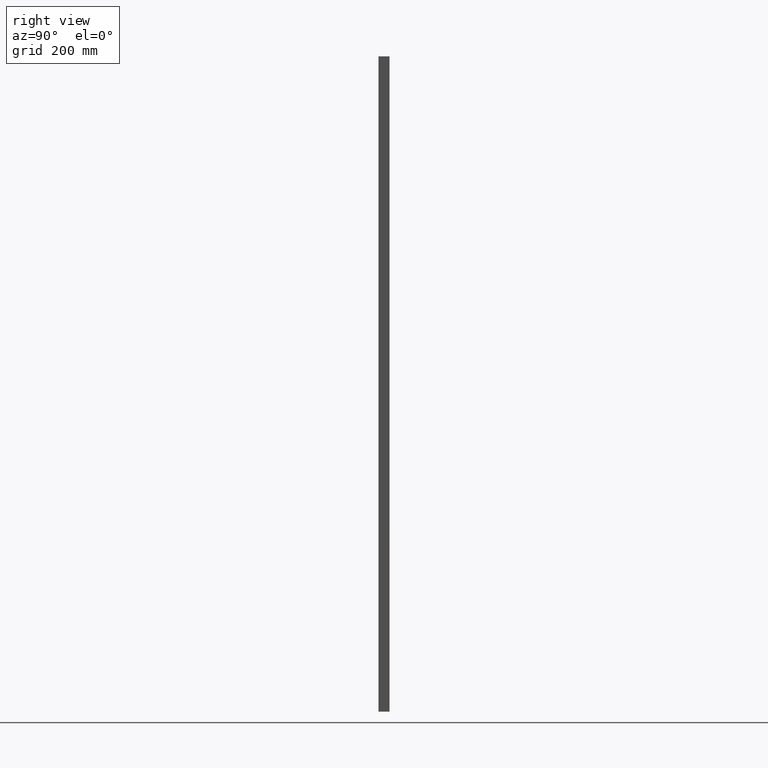
[diagram: clean part render]
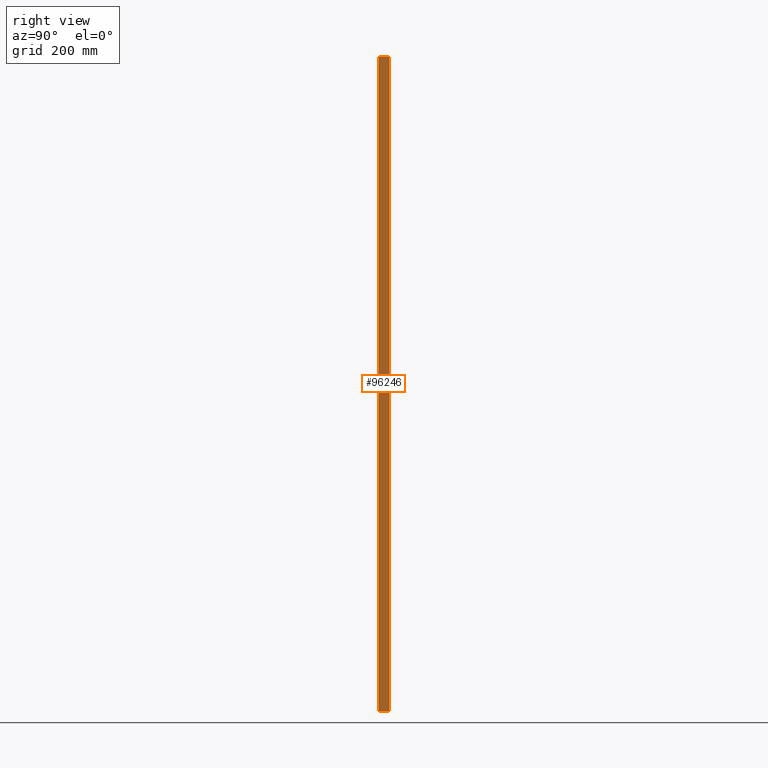
[diagram: same view with one face highlighted and labeled with its STEP entity id]
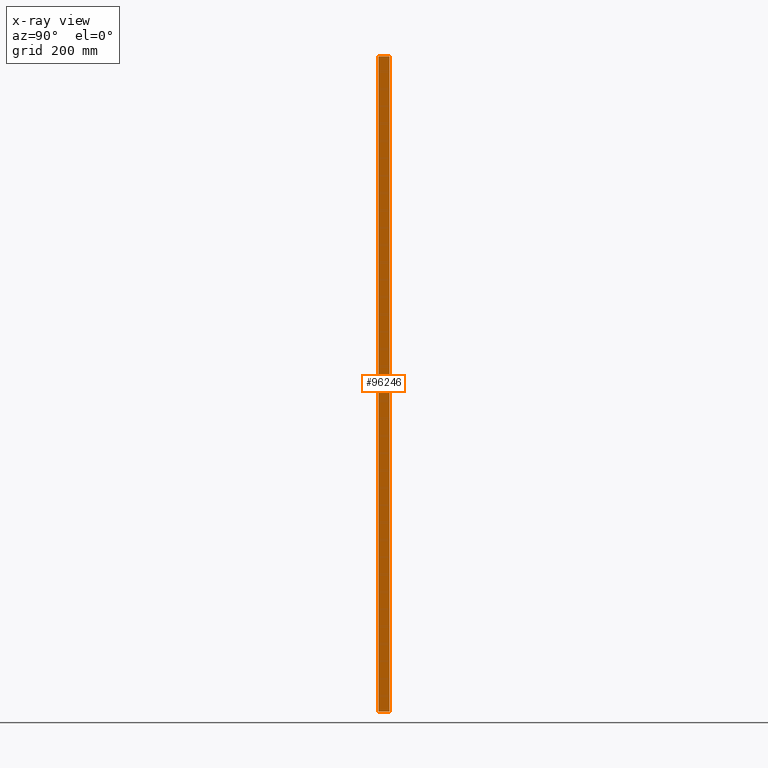
[diagram: x-ray of the same camera — body ghosted, the highlighted face saturated]
A machine part, right view. The second image highlights one B-rep face of the part: STEP entity #96246.
The next image is the same camera in x-ray: the body ghosted, the highlighted face saturated — about 0% of this face is hidden behind the body in this view.
In plain terms, the highlighted planar face has unit normal (1, -0, -0).
Its self-contained STEP definition (entity closure, byte-faithful):
#1186 = CARTESIAN_POINT ( 'NONE',  ( 590.0000000000001100, 9.999999999999468900, 0.0000000000000000000 ) ) ;
#2545 = ORIENTED_EDGE ( 'NONE', *, *, #9432, .F. ) ;
#7644 = DIRECTION ( 'NONE',  ( 9.329605248950895400E-017, 0.0000000000000000000, 1.000000000000000000 ) ) ;
#7698 = VECTOR ( 'NONE', #28053, 1000.000000000000000 ) ;
#8901 = ORIENTED_EDGE ( 'NONE', *, *, #22978, .T. ) ;
#9432 = EDGE_CURVE ( 'NONE', #97869, #67824, #45337, .T. ) ;
#12144 = CARTESIAN_POINT ( 'NONE',  ( 589.9999999999998900, 10.00000000000000000, -1190.000000000000000 ) ) ;
#13803 = ORIENTED_EDGE ( 'NONE', *, *, #67220, .T. ) ;
#17514 = LINE ( 'NONE', #39644, #27684 ) ;
#19547 = CARTESIAN_POINT ( 'NONE',  ( 590.0000000000001100, 10.00000000000000200, 1.110223024625156500E-013 ) ) ;
#22978 = EDGE_CURVE ( 'NONE', #97869, #66552, #27372, .T. ) ;
#23196 = EDGE_LOOP ( 'NONE', ( #13803, #69983, #2545, #8901 ) ) ;
#23394 = CARTESIAN_POINT ( 'NONE',  ( 590.0000000000000000, -10.00000000000000000, -1.110223024625156500E-013 ) ) ;
#24046 = DIRECTION ( 'NONE',  ( -3.061616997868383100E-016, -1.000000000000000000, -3.061616997868382600E-016 ) ) ;
#27372 = LINE ( 'NONE', #65844, #69814 ) ;
#27684 = VECTOR ( 'NONE', #7644, 1000.000000000000000 ) ;
#28053 = DIRECTION ( 'NONE',  ( 9.329605248950895400E-017, 0.0000000000000000000, 1.000000000000000000 ) ) ;
#28721 = CARTESIAN_POINT ( 'NONE',  ( 589.9999999999997700, -10.00000000000000000, -1190.000000000000000 ) ) ;
#32578 = VERTEX_POINT ( 'NONE', #19547 ) ;
#36186 = EDGE_CURVE ( 'NONE', #32578, #67824, #67177, .T. ) ;
#39644 = CARTESIAN_POINT ( 'NONE',  ( 589.9999999999998900, 10.00000000000000000, -1190.000000000000000 ) ) ;
#41780 = DIRECTION ( 'NONE',  ( 3.061616997868382600E-016, 1.000000000000000000, 0.0000000000000000000 ) ) ;
#45337 = LINE ( 'NONE', #28721, #7698 ) ;
#49417 = CARTESIAN_POINT ( 'NONE',  ( 590.0000000000000000, 9.999999999999833000, -1190.000000000000000 ) ) ;
#53420 = VECTOR ( 'NONE', #24046, 1000.000000000000000 ) ;
#57767 = PLANE ( 'NONE',  #69141 ) ;
#65824 = DIRECTION ( 'NONE',  ( 1.000000000000000000, -3.061616997868382600E-016, -9.329605248950895400E-017 ) ) ;
#65844 = CARTESIAN_POINT ( 'NONE',  ( 590.0000000000000000, 9.999999999999833000, -1190.000000000000000 ) ) ;
#66182 = DIRECTION ( 'NONE',  ( 3.061616997868382200E-016, 1.000000000000000000, -3.061616997868382200E-016 ) ) ;
#66552 = VERTEX_POINT ( 'NONE', #12144 ) ;
#67177 = LINE ( 'NONE', #1186, #53420 ) ;
#67220 = EDGE_CURVE ( 'NONE', #66552, #32578, #17514, .T. ) ;
#67824 = VERTEX_POINT ( 'NONE', #23394 ) ;
#69141 = AXIS2_PLACEMENT_3D ( 'NONE', #49417, #65824, #41780 ) ;
#69814 = VECTOR ( 'NONE', #66182, 1000.000000000000000 ) ;
#69983 = ORIENTED_EDGE ( 'NONE', *, *, #36186, .T. ) ;
#83424 = CARTESIAN_POINT ( 'NONE',  ( 589.9999999999997700, -10.00000000000000000, -1190.000000000000000 ) ) ;
#86106 = FACE_OUTER_BOUND ( 'NONE', #23196, .T. ) ;
#96246 = ADVANCED_FACE ( 'NONE', ( #86106 ), #57767, .T. ) ;
#97869 = VERTEX_POINT ( 'NONE', #83424 ) ;